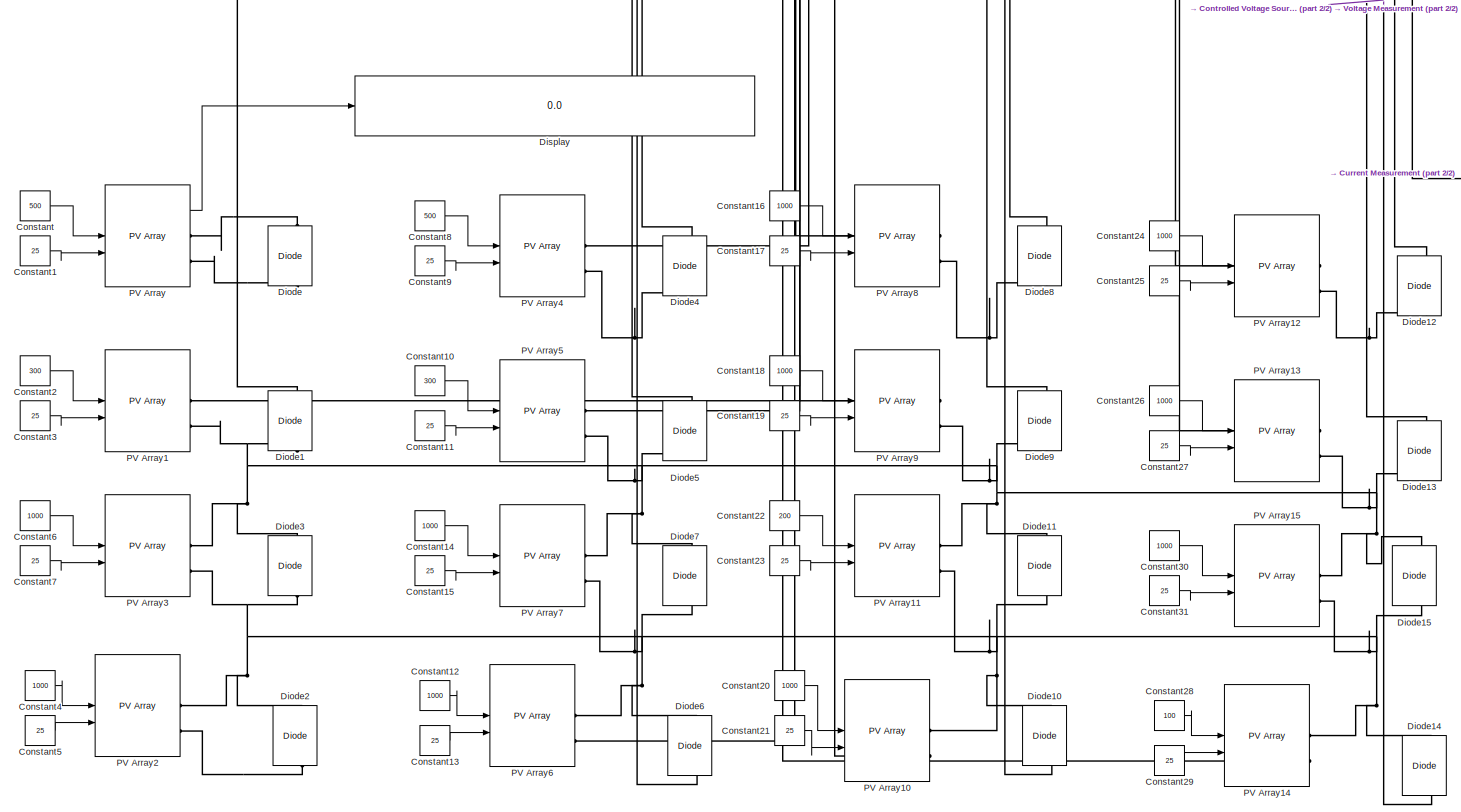
[diagram: root canvas - part 1/2, left side, full height]
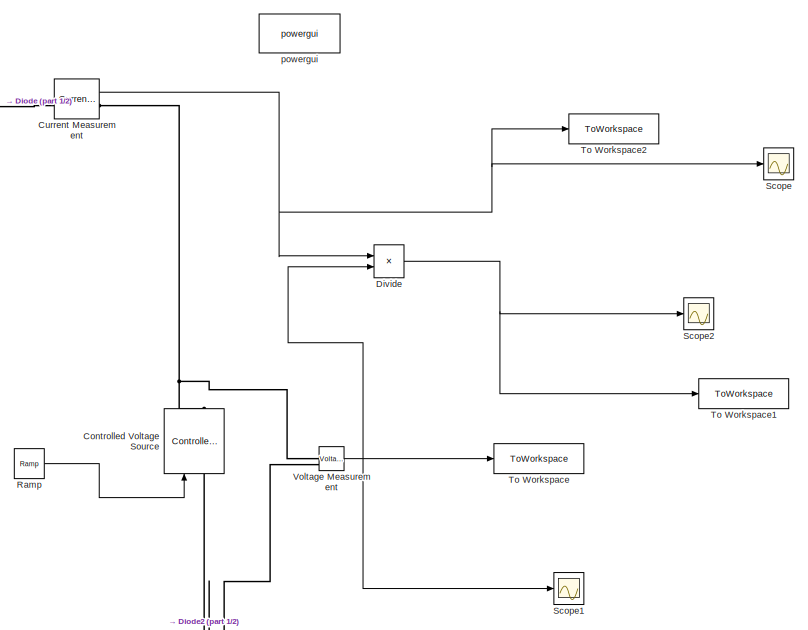
[diagram: root canvas - part 2/2, middle right region]
MODEL slx_dfc9c86395a9
KIND model
CONFIG AbsTol = auto
CONFIG EnableMultiTasking = off
CONFIG FixedStep = 1e-5
CONFIG MaxStep = auto
CONFIG MinStep = auto
CONFIG RelTol = 1e-3
CONFIG SampleTimeConstraint = Unconstrained
CONFIG SolverName = ode3
CONFIG StartTime = 0.0
CONFIG StopTime = 0.25
BLOCK [Constant] Constant
  Value = 500
BLOCK [Constant] Constant1
  NameLocation = left
  Value = 25
BLOCK [Constant] Constant10
  Value = 300
BLOCK [Constant] Constant11
  NameLocation = left
  Value = 25
BLOCK [Constant] Constant12
  Value = 1000
BLOCK [Constant] Constant13
  NameLocation = left
  Value = 25
BLOCK [Constant] Constant14
  Value = 1000
BLOCK [Constant] Constant15
  NameLocation = left
  Value = 25
BLOCK [Constant] Constant16
  Value = 1000
BLOCK [Constant] Constant17
  NameLocation = left
  Value = 25
BLOCK [Constant] Constant18
  Value = 1000
BLOCK [Constant] Constant19
  NameLocation = left
  Value = 25
BLOCK [Constant] Constant2
  Value = 300
BLOCK [Constant] Constant20
  Value = 1000
BLOCK [Constant] Constant21
  NameLocation = left
  Value = 25
BLOCK [Constant] Constant22
  Value = 200
BLOCK [Constant] Constant23
  NameLocation = left
  Value = 25
BLOCK [Constant] Constant24
  Value = 1000
BLOCK [Constant] Constant25
  NameLocation = left
  Value = 25
BLOCK [Constant] Constant26
  Value = 1000
BLOCK [Constant] Constant27
  NameLocation = left
  Value = 25
BLOCK [Constant] Constant28
  Value = 100
BLOCK [Constant] Constant29
  NameLocation = left
  Value = 25
BLOCK [Constant] Constant3
  NameLocation = left
  Value = 25
BLOCK [Constant] Constant30
  Value = 1000
BLOCK [Constant] Constant31
  NameLocation = left
  Value = 25
BLOCK [Constant] Constant4
  Value = 1000
BLOCK [Constant] Constant5
  NameLocation = left
  Value = 25
BLOCK [Constant] Constant6
  Value = 1000
BLOCK [Constant] Constant7
  NameLocation = left
  Value = 25
BLOCK [Constant] Constant8
  Value = 500
BLOCK [Constant] Constant9
  NameLocation = left
  Value = 25
BLOCK [Reference] Controlled Voltage Source  REF=spsControlledVoltageSourceLib/Controlled Voltage Source
  LibrarySourceBlock = sps_lib/Sources/Controlled Voltage Source
  SourceBlock = spsControlledVoltageSourceLib/Controlled Voltage Source
  SourceType = Controlled Voltage Source
BLOCK [Reference] Current Measurement  REF=spsCurrentMeasurementLib/Current Measurement
  LibrarySourceBlock = sps_lib/Sensors and Measurements/Current Measurement
  SourceBlock = spsCurrentMeasurementLib/Current Measurement
  SourceType = Current Measurement
  UserDataPersistent = on
BLOCK [Reference] Diode  REF=spsDiodeLib/Diode
  LibrarySourceBlock = sps_lib/Power Electronics/Diode
  NameLocation = right
  SourceBlock = spsDiodeLib/Diode
  SourceType = Diode
BLOCK [Reference] Diode1  REF=spsDiodeLib/Diode
  LibrarySourceBlock = sps_lib/Power Electronics/Diode
  NameLocation = right
  SourceBlock = spsDiodeLib/Diode
  SourceType = Diode
BLOCK [Reference] Diode10  REF=spsDiodeLib/Diode
  LibrarySourceBlock = sps_lib/Power Electronics/Diode
  NameLocation = right
  SourceBlock = spsDiodeLib/Diode
  SourceType = Diode
BLOCK [Reference] Diode11  REF=spsDiodeLib/Diode
  LibrarySourceBlock = sps_lib/Power Electronics/Diode
  NameLocation = right
  SourceBlock = spsDiodeLib/Diode
  SourceType = Diode
BLOCK [Reference] Diode12  REF=spsDiodeLib/Diode
  LibrarySourceBlock = sps_lib/Power Electronics/Diode
  NameLocation = right
  SourceBlock = spsDiodeLib/Diode
  SourceType = Diode
BLOCK [Reference] Diode13  REF=spsDiodeLib/Diode
  LibrarySourceBlock = sps_lib/Power Electronics/Diode
  NameLocation = right
  SourceBlock = spsDiodeLib/Diode
  SourceType = Diode
BLOCK [Reference] Diode14  REF=spsDiodeLib/Diode
  LibrarySourceBlock = sps_lib/Power Electronics/Diode
  NameLocation = right
  SourceBlock = spsDiodeLib/Diode
  SourceType = Diode
BLOCK [Reference] Diode15  REF=spsDiodeLib/Diode
  LibrarySourceBlock = sps_lib/Power Electronics/Diode
  NameLocation = right
  SourceBlock = spsDiodeLib/Diode
  SourceType = Diode
BLOCK [Reference] Diode2  REF=spsDiodeLib/Diode
  LibrarySourceBlock = sps_lib/Power Electronics/Diode
  NameLocation = right
  SourceBlock = spsDiodeLib/Diode
  SourceType = Diode
BLOCK [Reference] Diode3  REF=spsDiodeLib/Diode
  LibrarySourceBlock = sps_lib/Power Electronics/Diode
  NameLocation = right
  SourceBlock = spsDiodeLib/Diode
  SourceType = Diode
BLOCK [Reference] Diode4  REF=spsDiodeLib/Diode
  LibrarySourceBlock = sps_lib/Power Electronics/Diode
  NameLocation = right
  SourceBlock = spsDiodeLib/Diode
  SourceType = Diode
BLOCK [Reference] Diode5  REF=spsDiodeLib/Diode
  LibrarySourceBlock = sps_lib/Power Electronics/Diode
  NameLocation = right
  SourceBlock = spsDiodeLib/Diode
  SourceType = Diode
BLOCK [Reference] Diode6  REF=spsDiodeLib/Diode
  LibrarySourceBlock = sps_lib/Power Electronics/Diode
  NameLocation = right
  SourceBlock = spsDiodeLib/Diode
  SourceType = Diode
BLOCK [Reference] Diode7  REF=spsDiodeLib/Diode
  LibrarySourceBlock = sps_lib/Power Electronics/Diode
  NameLocation = right
  SourceBlock = spsDiodeLib/Diode
  SourceType = Diode
BLOCK [Reference] Diode8  REF=spsDiodeLib/Diode
  LibrarySourceBlock = sps_lib/Power Electronics/Diode
  NameLocation = right
  SourceBlock = spsDiodeLib/Diode
  SourceType = Diode
BLOCK [Reference] Diode9  REF=spsDiodeLib/Diode
  LibrarySourceBlock = sps_lib/Power Electronics/Diode
  NameLocation = right
  SourceBlock = spsDiodeLib/Diode
  SourceType = Diode
BLOCK [Display] Display
  Decimation = 1
BLOCK [Product] Divide
  RndMeth = Zero
  SaturateOnIntegerOverflow = on
BLOCK [Reference] PV Array  REF=spsPVArrayLib/PV Array
  LibrarySourceBlock = sps_lib/Sources/PV Array
  SourceBlock = spsPVArrayLib/PV Array
  SourceType = PV array
BLOCK [Reference] PV Array1  REF=spsPVArrayLib/PV Array
  LibrarySourceBlock = sps_lib/Sources/PV Array
  SourceBlock = spsPVArrayLib/PV Array
  SourceType = PV array
BLOCK [Reference] PV Array10  REF=spsPVArrayLib/PV Array
  LibrarySourceBlock = sps_lib/Sources/PV Array
  SourceBlock = spsPVArrayLib/PV Array
  SourceType = PV array
BLOCK [Reference] PV Array11  REF=spsPVArrayLib/PV Array
  LibrarySourceBlock = sps_lib/Sources/PV Array
  SourceBlock = spsPVArrayLib/PV Array
  SourceType = PV array
BLOCK [Reference] PV Array12  REF=spsPVArrayLib/PV Array
  LibrarySourceBlock = sps_lib/Sources/PV Array
  SourceBlock = spsPVArrayLib/PV Array
  SourceType = PV array
BLOCK [Reference] PV Array13  REF=spsPVArrayLib/PV Array
  LibrarySourceBlock = sps_lib/Sources/PV Array
  SourceBlock = spsPVArrayLib/PV Array
  SourceType = PV array
BLOCK [Reference] PV Array14  REF=spsPVArrayLib/PV Array
  LibrarySourceBlock = sps_lib/Sources/PV Array
  SourceBlock = spsPVArrayLib/PV Array
  SourceType = PV array
BLOCK [Reference] PV Array15  REF=spsPVArrayLib/PV Array
  LibrarySourceBlock = sps_lib/Sources/PV Array
  SourceBlock = spsPVArrayLib/PV Array
  SourceType = PV array
BLOCK [Reference] PV Array2  REF=spsPVArrayLib/PV Array
  LibrarySourceBlock = sps_lib/Sources/PV Array
  SourceBlock = spsPVArrayLib/PV Array
  SourceType = PV array
BLOCK [Reference] PV Array3  REF=spsPVArrayLib/PV Array
  LibrarySourceBlock = sps_lib/Sources/PV Array
  SourceBlock = spsPVArrayLib/PV Array
  SourceType = PV array
BLOCK [Reference] PV Array4  REF=spsPVArrayLib/PV Array
  LibrarySourceBlock = sps_lib/Sources/PV Array
  SourceBlock = spsPVArrayLib/PV Array
  SourceType = PV array
BLOCK [Reference] PV Array5  REF=spsPVArrayLib/PV Array
  LibrarySourceBlock = sps_lib/Sources/PV Array
  SourceBlock = spsPVArrayLib/PV Array
  SourceType = PV array
BLOCK [Reference] PV Array6  REF=spsPVArrayLib/PV Array
  LibrarySourceBlock = sps_lib/Sources/PV Array
  SourceBlock = spsPVArrayLib/PV Array
  SourceType = PV array
BLOCK [Reference] PV Array7  REF=spsPVArrayLib/PV Array
  LibrarySourceBlock = sps_lib/Sources/PV Array
  SourceBlock = spsPVArrayLib/PV Array
  SourceType = PV array
BLOCK [Reference] PV Array8  REF=spsPVArrayLib/PV Array
  LibrarySourceBlock = sps_lib/Sources/PV Array
  SourceBlock = spsPVArrayLib/PV Array
  SourceType = PV array
BLOCK [Reference] PV Array9  REF=spsPVArrayLib/PV Array
  LibrarySourceBlock = sps_lib/Sources/PV Array
  SourceBlock = spsPVArrayLib/PV Array
  SourceType = PV array
BLOCK [Reference] Ramp  REF=simulink/Sources/Ramp
  SourceBlock = simulink/Sources/Ramp
  SourceType = Ramp
BLOCK [Scope] Scope
  Floating = off
  NumInputPorts = 1
  ScopeSpecificationString = Simulink.scopes.TimeScopeBlockCfg('CurrentConfiguration', extmgr.ConfigurationSet(extmgr.Configuration('Core','General UI',true),extmgr.Configuration('Core','Source UI',true),extmgr.Configuration('Sources','WiredSimulink',true),extmgr.Configuration('Visuals','Time Domain',true,'SerializedDisplays',{struct('MinYLimReal','-6.61439','MaxYLimReal','28.6566','YLabelReal','','MinYLimMag','0.00000','MaxY...<+1394ch>
BLOCK [Scope] Scope1
  Floating = off
  NumInputPorts = 1
  ScopeSpecificationString = Simulink.scopes.TimeScopeBlockCfg('CurrentConfiguration', extmgr.ConfigurationSet(extmgr.Configuration('Core','General UI',true),extmgr.Configuration('Core','Source UI',true),extmgr.Configuration('Sources','WiredSimulink',true,'DataLoggingVariableName','ScopeData1'),extmgr.Configuration('Visuals','Time Domain',true,'SerializedDisplays',{struct('MinYLimReal','-18.14492','MaxYLimReal','163.30426','Y...<+1443ch>
BLOCK [Scope] Scope2
  Floating = off
  NumInputPorts = 1
  ScopeSpecificationString = Simulink.scopes.TimeScopeBlockCfg('CurrentConfiguration', extmgr.ConfigurationSet(extmgr.Configuration('Core','General UI',true),extmgr.Configuration('Core','Source UI',true),extmgr.Configuration('Sources','WiredSimulink',true,'DataLoggingVariableName','ScopeData2'),extmgr.Configuration('Visuals','Time Domain',true,'SerializedDisplays',{struct('MinYLimReal','-803.36249','MaxYLimReal','2748.77364',...<+1438ch>
BLOCK [ToWorkspace] To Workspace
  FixptAsFi = on
  MaxDataPoints = inf
  SampleTime = -1
  SaveFormat = Structure With Time
  VariableName = Vpv
BLOCK [ToWorkspace] To Workspace1
  FixptAsFi = on
  MaxDataPoints = inf
  SampleTime = -1
  SaveFormat = Structure With Time
  VariableName = Ppv
BLOCK [ToWorkspace] To Workspace2
  FixptAsFi = on
  MaxDataPoints = inf
  SampleTime = -1
  SaveFormat = Structure With Time
  VariableName = Ipv
BLOCK [Reference] Voltage Measurement  REF=spsVoltageMeasurementLib/Voltage Measurement
  LibrarySourceBlock = sps_lib/Sensors and Measurements/Voltage Measurement
  SourceBlock = spsVoltageMeasurementLib/Voltage Measurement
  SourceType = Voltage Measurement
  UserDataPersistent = on
BLOCK [Reference] powergui  REF=sps_lib/powergui
  LibrarySourceBlock = sps_lib/powergui
  Priority = 1
  SourceBlock = sps_lib/powergui
  SourceType = PSB option menu block
LINE Constant10:1 -> PV Array5:1
LINE Constant11:1 -> PV Array5:2
LINE Constant12:1 -> PV Array6:1
LINE Constant13:1 -> PV Array6:2
LINE Constant14:1 -> PV Array7:1
LINE Constant15:1 -> PV Array7:2
LINE Constant16:1 -> PV Array8:1
LINE Constant17:1 -> PV Array8:2
LINE Constant18:1 -> PV Array9:1
LINE Constant19:1 -> PV Array9:2
LINE Constant1:1 -> PV Array:2
LINE Constant20:1 -> PV Array10:1
LINE Constant21:1 -> PV Array10:2
LINE Constant22:1 -> PV Array11:1
LINE Constant23:1 -> PV Array11:2
LINE Constant24:1 -> PV Array12:1
LINE Constant25:1 -> PV Array12:2
LINE Constant26:1 -> PV Array13:1
LINE Constant27:1 -> PV Array13:2
LINE Constant28:1 -> PV Array14:1
LINE Constant29:1 -> PV Array14:2
LINE Constant2:1 -> PV Array1:1
LINE Constant30:1 -> PV Array15:1
LINE Constant31:1 -> PV Array15:2
LINE Constant3:1 -> PV Array1:2
LINE Constant4:1 -> PV Array2:1
LINE Constant5:1 -> PV Array2:2
LINE Constant6:1 -> PV Array3:1
LINE Constant7:1 -> PV Array3:2
LINE Constant8:1 -> PV Array4:1
LINE Constant9:1 -> PV Array4:2
LINE Constant:1 -> PV Array:1
NET Current Measurement:1 -> Divide:1, Scope:1, To Workspace2:1
NET Divide:1 -> Scope2:1, To Workspace1:1
LINE PV Array:1 -> Display:1
LINE Ramp:1 -> Controlled Voltage Source:1
NET Voltage Measurement:1 -> Divide:2, Scope1:1, To Workspace:1
PNET net1: Controlled Voltage Source:LConn1 -- Diode10:LConn1 -- Diode14:LConn1 -- Diode2:LConn1 -- Diode6:LConn1 -- PV Array10:RConn2 -- PV Array14:RConn2 -- PV Array2:RConn2 -- PV Array6:RConn2 -- Voltage Measurement:LConn2
PNET net2: Controlled Voltage Source:RConn1 -- Current Measurement:RConn1 -- Voltage Measurement:LConn1
PNET net3: Current Measurement:LConn1 -- Diode12:RConn1 -- Diode4:RConn1 -- Diode8:RConn1 -- Diode:RConn1 -- PV Array12:RConn1 -- PV Array4:RConn1 -- PV Array8:RConn1 -- PV Array:RConn1
PNET net4: Diode10:RConn1 -- Diode11:LConn1 -- Diode14:RConn1 -- Diode15:LConn1 -- Diode2:RConn1 -- Diode3:LConn1 -- Diode6:RConn1 -- Diode7:LConn1 -- PV Array10:RConn1 -- PV Array11:RConn2 -- PV Array14:RConn1 -- PV Array15:RConn2 -- PV Array2:RConn1 -- PV Array3:RConn2 -- PV Array6:RConn1 -- PV Array7:RConn2
PNET net5: Diode11:RConn1 -- Diode13:LConn1 -- Diode15:RConn1 -- Diode1:LConn1 -- Diode3:RConn1 -- Diode5:LConn1 -- Diode7:RConn1 -- Diode9:LConn1 -- PV Array11:RConn1 -- PV Array13:RConn2 -- PV Array15:RConn1 -- PV Array1:RConn2 -- PV Array3:RConn1 -- PV Array5:RConn2 -- PV Array7:RConn1 -- PV Array9:RConn2
PNET net6: Diode12:LConn1 -- Diode13:RConn1 -- Diode1:RConn1 -- Diode4:LConn1 -- Diode5:RConn1 -- Diode8:LConn1 -- Diode9:RConn1 -- Diode:LConn1 -- PV Array12:RConn2 -- PV Array13:RConn1 -- PV Array1:RConn1 -- PV Array4:RConn2 -- PV Array5:RConn1 -- PV Array8:RConn2 -- PV Array9:RConn1 -- PV Array:RConn2
note: NET lines group one-source signal fan-out (src -> all destinations, sorted); 1:1 wires keep LINE; PNET lines group multi-terminal physical nets as a canonical sorted terminal list (undirected conserving connections); 2-terminal nets keep the pairwise PLINE form
